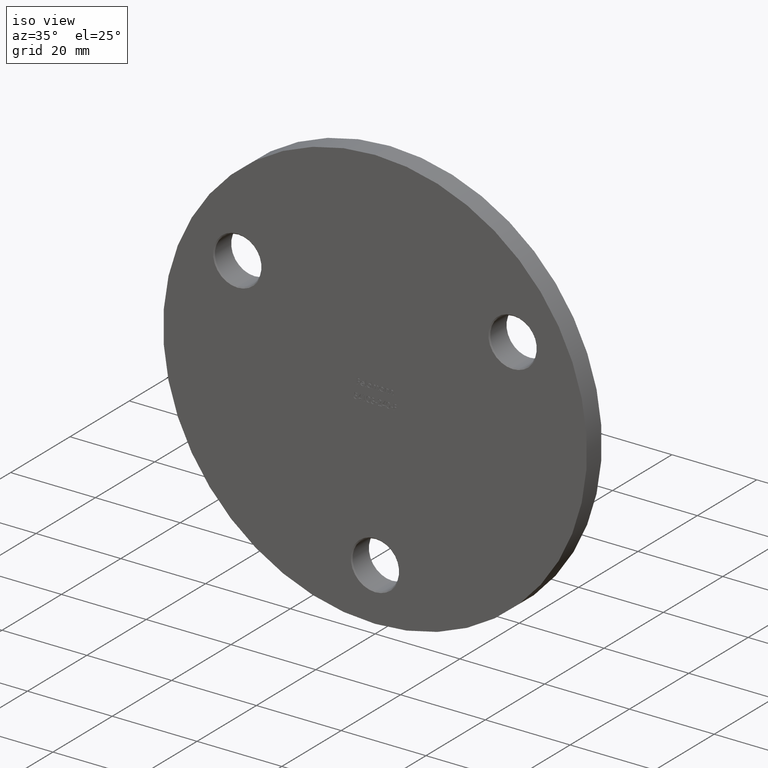
[diagram: clean part render]
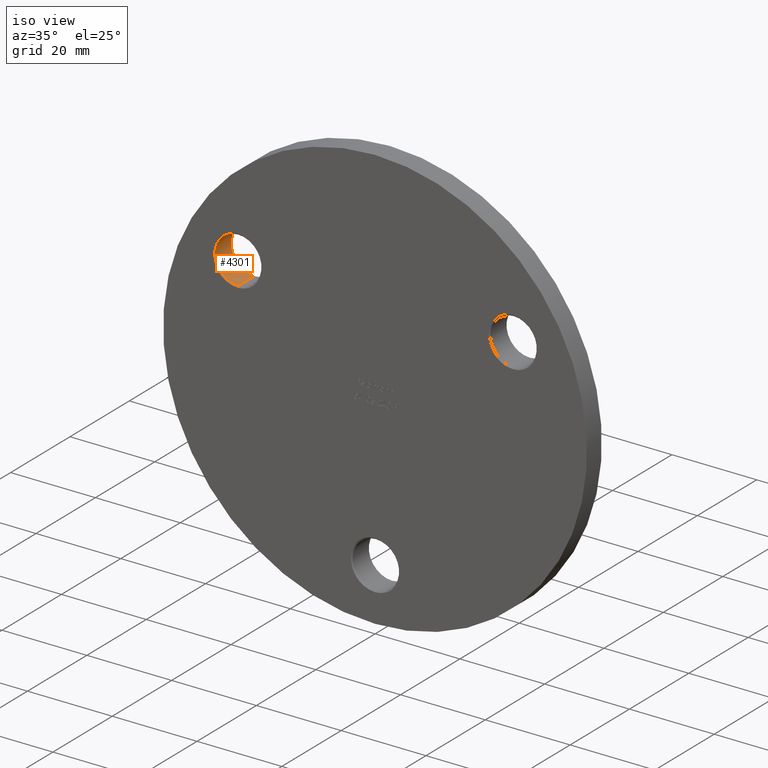
[diagram: same view with one face highlighted and labeled with its STEP entity id]
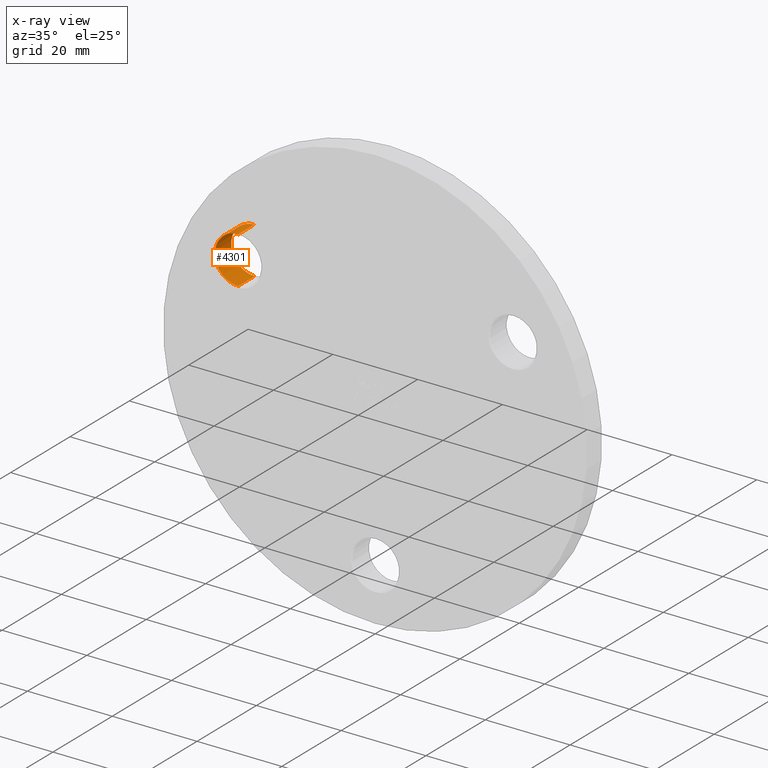
[diagram: x-ray of the same camera — body ghosted, the highlighted face saturated]
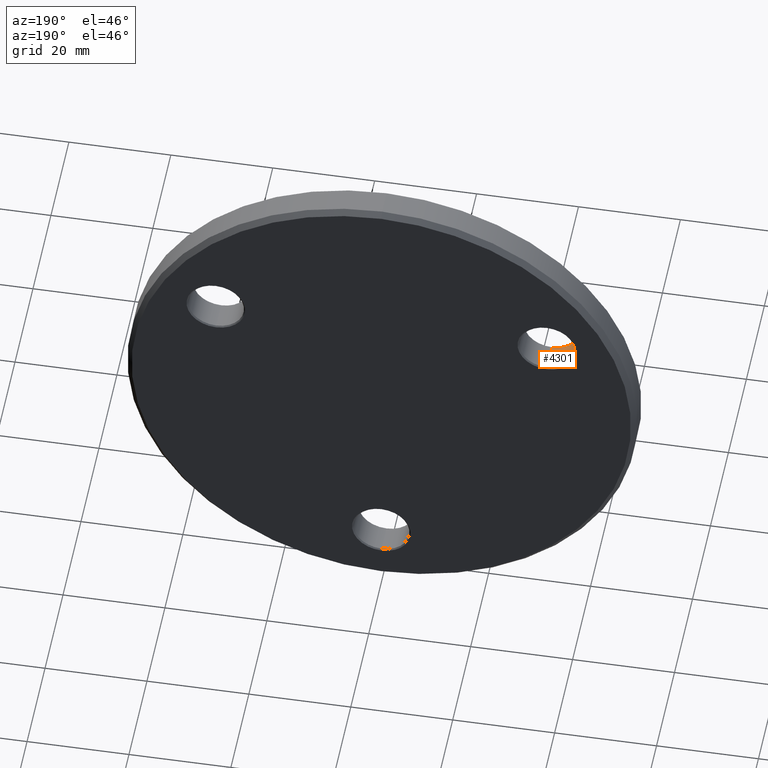
[diagram: same view with one face highlighted and labeled with its STEP entity id]
A machine part, iso view. The second image highlights one B-rep face of the part: STEP entity #4301.
The next image is the same camera in x-ray: the body ghosted, the highlighted face saturated — about 0% of this face is hidden behind the body in this view.
A second angle (auxiliary view) of the same face is appended — the face is thin or edge-on in the first view.
In plain terms, the highlighted cylindrical surface (edge-blend (fillet) strip) has radius 5.5 mm, axis along (-0, -1, -0).
Its self-contained STEP definition (entity closure, byte-faithful):
#344 = ORIENTED_EDGE ( 'NONE', *, *, #12497, .F. ) ;
#414 = CARTESIAN_POINT ( 'NONE',  ( -32.47595264191643594, 5.749999999999985789, 18.75000000000001776 ) ) ;
#781 = FACE_OUTER_BOUND ( 'NONE', #8988, .T. ) ;
#1077 = EDGE_CURVE ( 'NONE', #9941, #4742, #9642, .T. ) ;
#1299 = DIRECTION ( 'NONE',  ( 0.000000000000000000, 0.000000000000000000, 1.000000000000000000 ) ) ;
#1664 = AXIS2_PLACEMENT_3D ( 'NONE', #3260, #9391, #1299 ) ;
#2130 = VERTEX_POINT ( 'NONE', #7632 ) ;
#2488 = CARTESIAN_POINT ( 'NONE',  ( -32.47595264191643594, 6.000000000000000000, 24.25000000000001421 ) ) ;
#2866 = CARTESIAN_POINT ( 'NONE',  ( -32.47595264191643594, 6.000000000000000000, 13.25000000000002132 ) ) ;
#3260 = CARTESIAN_POINT ( 'NONE',  ( -32.47595264191643594, 0.2499999999999941436, 18.75000000000001776 ) ) ;
#3378 = CARTESIAN_POINT ( 'NONE',  ( -32.47595264191643594, 5.749999999999985789, 24.25000000000001421 ) ) ;
#4253 = EDGE_CURVE ( 'NONE', #4742, #11923, #8030, .T. ) ;
#4275 = CIRCLE ( 'NONE', #1664, 5.499999999999998224 ) ;
#4301 = ADVANCED_FACE ( 'NONE', ( #781 ), #5301, .F. ) ;
#4409 = CARTESIAN_POINT ( 'NONE',  ( -32.47595264191643594, 0.2499999999999941436, 24.25000000000001421 ) ) ;
#4742 = VERTEX_POINT ( 'NONE', #3378 ) ;
#5301 = CYLINDRICAL_SURFACE ( 'NONE', #10716, 5.499999999999996447 ) ;
#5804 = ORIENTED_EDGE ( 'NONE', *, *, #1077, .T. ) ;
#5919 = DIRECTION ( 'NONE',  ( -0.000000000000000000, -1.000000000000000000, -0.000000000000000000 ) ) ;
#6099 = AXIS2_PLACEMENT_3D ( 'NONE', #414, #8775, #7844 ) ;
#6201 = EDGE_CURVE ( 'NONE', #11923, #2130, #4275, .T. ) ;
#6698 = CARTESIAN_POINT ( 'NONE',  ( -32.47595264191643594, 6.000000000000000000, 18.75000000000001776 ) ) ;
#7632 = CARTESIAN_POINT ( 'NONE',  ( -32.47595264191643594, 0.2499999999999941436, 13.25000000000002132 ) ) ;
#7716 = ORIENTED_EDGE ( 'NONE', *, *, #6201, .T. ) ;
#7844 = DIRECTION ( 'NONE',  ( 0.000000000000000000, 0.000000000000000000, 1.000000000000000000 ) ) ;
#8030 = LINE ( 'NONE', #2488, #9811 ) ;
#8565 = ORIENTED_EDGE ( 'NONE', *, *, #4253, .T. ) ;
#8757 = DIRECTION ( 'NONE',  ( -0.000000000000000000, -1.000000000000000000, -0.000000000000000000 ) ) ;
#8775 = DIRECTION ( 'NONE',  ( 0.000000000000000000, 1.000000000000000000, 0.000000000000000000 ) ) ;
#8797 = DIRECTION ( 'NONE',  ( 0.000000000000000000, 0.000000000000000000, -1.000000000000000000 ) ) ;
#8988 = EDGE_LOOP ( 'NONE', ( #5804, #8565, #7716, #344 ) ) ;
#9391 = DIRECTION ( 'NONE',  ( -0.000000000000000000, -1.000000000000000000, -0.000000000000000000 ) ) ;
#9642 = CIRCLE ( 'NONE', #6099, 5.499999999999998224 ) ;
#9811 = VECTOR ( 'NONE', #10719, 1000.000000000000000 ) ;
#9902 = CARTESIAN_POINT ( 'NONE',  ( -32.47595264191643594, 5.749999999999985789, 13.25000000000002132 ) ) ;
#9941 = VERTEX_POINT ( 'NONE', #9902 ) ;
#10648 = VECTOR ( 'NONE', #5919, 1000.000000000000000 ) ;
#10716 = AXIS2_PLACEMENT_3D ( 'NONE', #6698, #8757, #8797 ) ;
#10719 = DIRECTION ( 'NONE',  ( -0.000000000000000000, -1.000000000000000000, -0.000000000000000000 ) ) ;
#11923 = VERTEX_POINT ( 'NONE', #4409 ) ;
#12084 = LINE ( 'NONE', #2866, #10648 ) ;
#12497 = EDGE_CURVE ( 'NONE', #9941, #2130, #12084, .T. ) ;